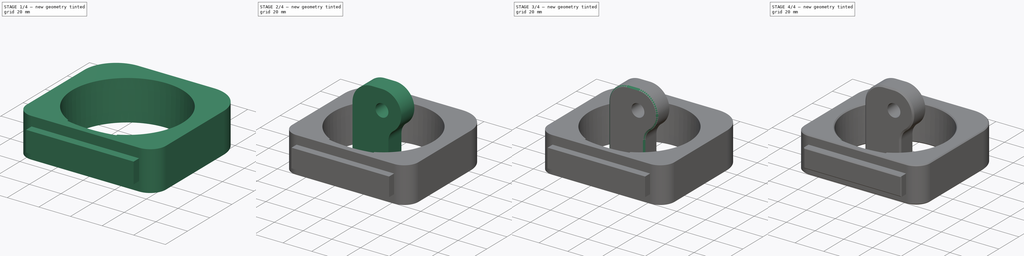
[diagram: build sequence overview — one tinted view per stage of 4, left to right]
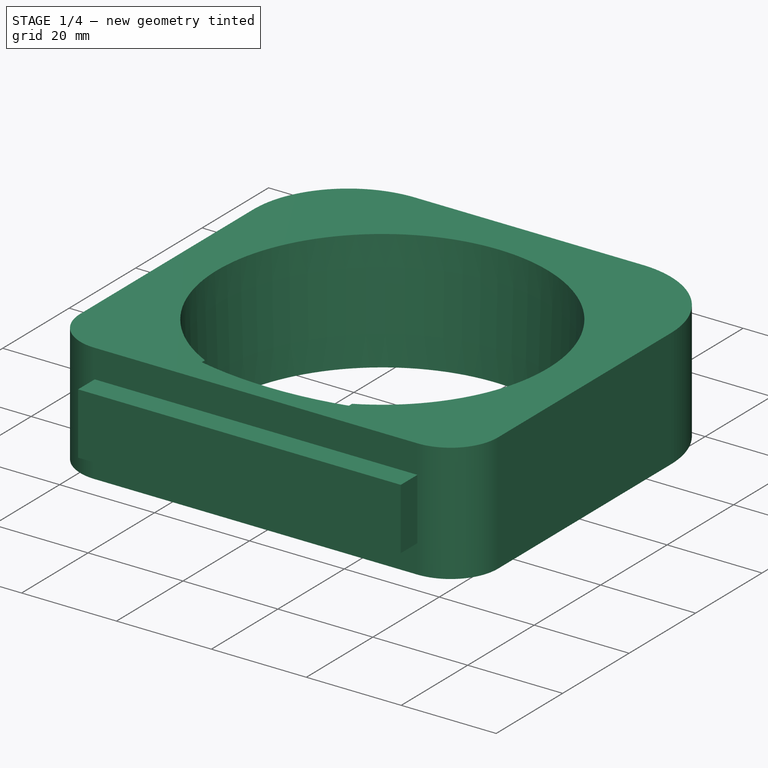
[diagram: stage 1 of 4 — iso view after this stage's code; geometry added in this stage tinted green]
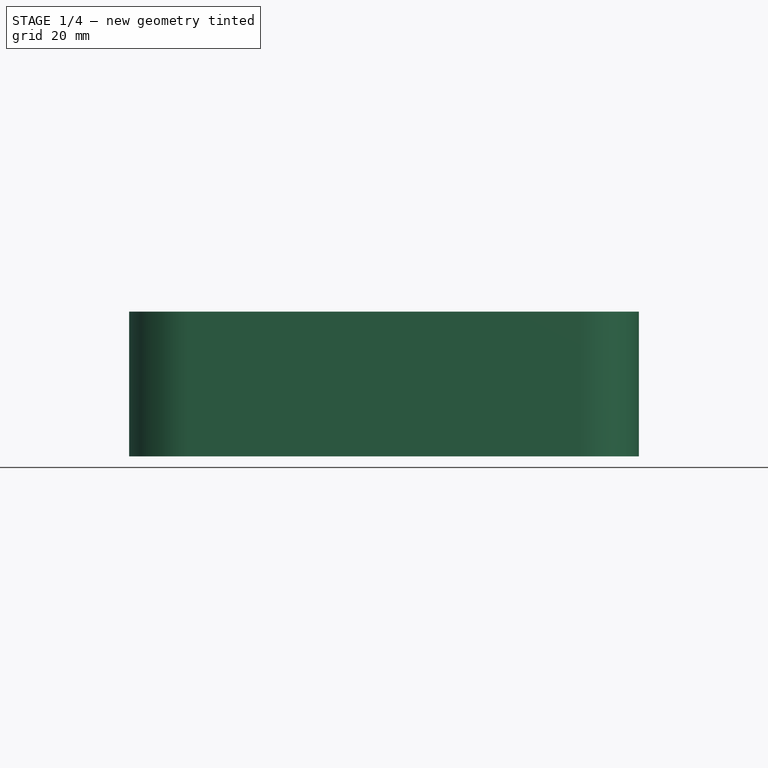
[diagram: stage 1 of 4 — front view after this stage's code; geometry added in this stage tinted green]
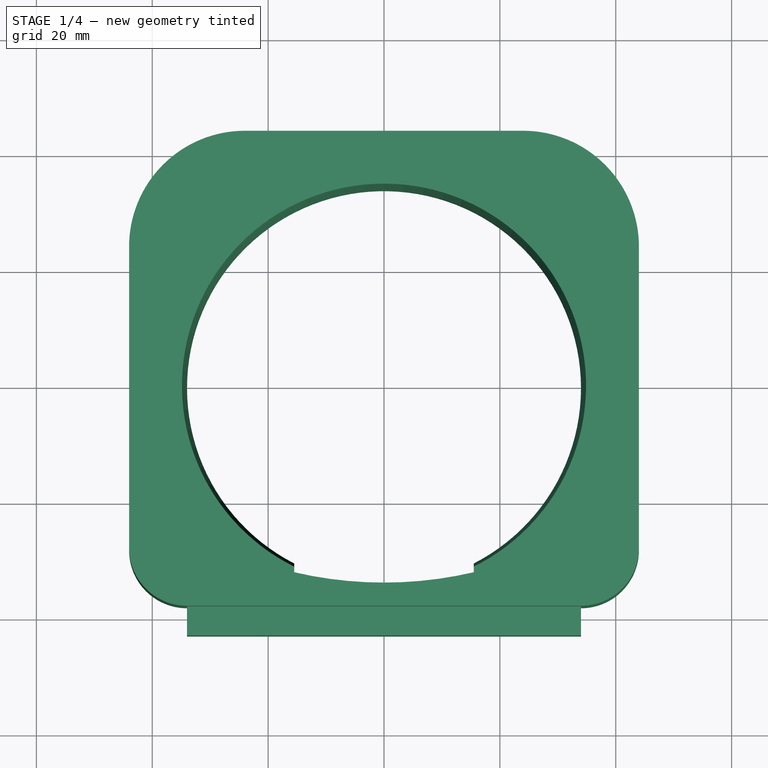
[diagram: stage 1 of 4 — top view after this stage's code; geometry added in this stage tinted green]
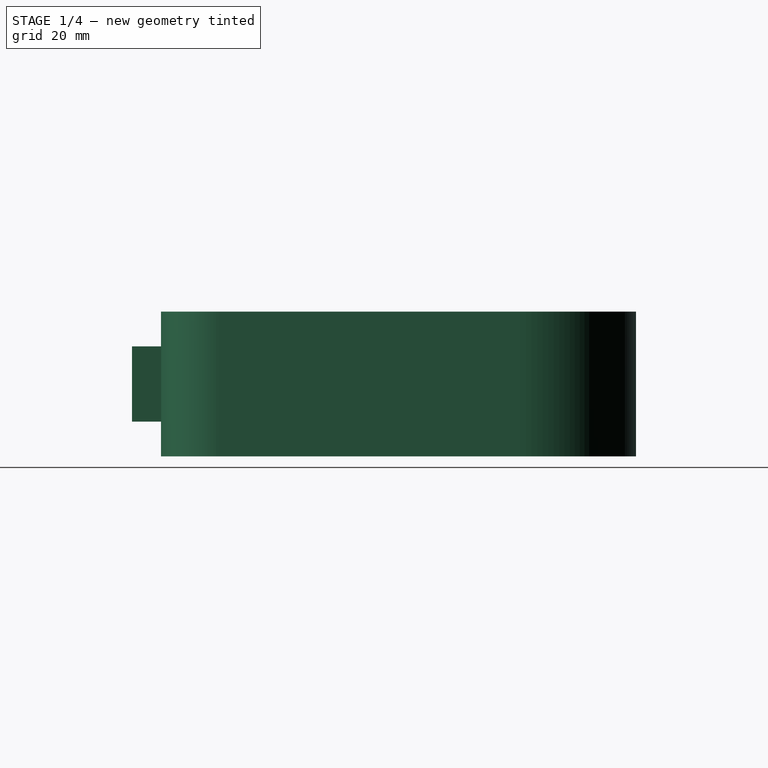
[diagram: stage 1 of 4 — right view after this stage's code; geometry added in this stage tinted green]
FCSTD DOCUMENT  (FreeCAD 2021.328R24301 +3441 (Git))
Label: angle grinder holder
License: All rights reserved
LicenseURL: http://en.wikipedia.org/wiki/All_rights_reserved
objects: Sketcher::SketchObject×5, PartDesign::Pad×4, PartDesign::Chamfer×3, PartDesign::Body×2, PartDesign::Solid×2, PartDesign::Draft×1, PartDesign::Plane×1, Part::SubShapeBinder×1, PartDesign::Pocket×1, PartDesign::Split×1
note: 40 computed .brp shape members not serialized (recipe doc carries the construction recipe); baked Part::Feature solids carry a one-line shape summary decoded from their .brp

FEATURE [Sketcher::SketchObject] Sketch
  FullyConstrained = true
  MapMode = 5
  Support = -> [XY_Plane]
  sketch-geometry (15):
    g0: Circle [constr] CenterX=0 CenterY=0 CenterZ=0 NormalX=0 NormalY=0 NormalZ=1 AngleXU=0 Radius=34
    g1: ArcOfCircle CenterX=-5.8e-15 CenterY=34 CenterZ=0 NormalX=0 NormalY=0 NormalZ=1 AngleXU=0 Radius=68 StartAngle=4.48243 EndAngle=4.94235
    g2: LineSegment StartX=-15.5 StartY=-32.2099 StartZ=0 EndX=-15.5 EndY=-30.2614 EndZ=0
    g3: LineSegment StartX=15.5 StartY=-32.2099 StartZ=0 EndX=15.5 EndY=-30.2614 EndZ=0
    g4: ArcOfCircle CenterX=0 CenterY=0 CenterZ=0 NormalX=0 NormalY=0 NormalZ=1 AngleXU=0 Radius=34 StartAngle=5.18575 EndAngle=10.5222
    g5: LineSegment StartX=-34 StartY=-38 StartZ=0 EndX=34 EndY=-38 EndZ=0
    g6: LineSegment StartX=44 StartY=-28 StartZ=0 EndX=44 EndY=24 EndZ=0
    g7: LineSegment StartX=24 StartY=44 StartZ=0 EndX=-24 EndY=44 EndZ=0
    g8: LineSegment StartX=-44 StartY=24 StartZ=0 EndX=-44 EndY=-28 EndZ=0
    g9: GeomPoint [constr] X=34 Y=0 Z=0
    g10: GeomPoint [constr] X=0 Y=-34 Z=0
    g11: ArcOfCircle CenterX=-34 CenterY=-28 CenterZ=0 NormalX=0 NormalY=0 NormalZ=1 AngleXU=0 Radius=10 StartAngle=3.14159 EndAngle=4.71239
    g12: ArcOfCircle CenterX=-24 CenterY=24 CenterZ=0 NormalX=0 NormalY=0 NormalZ=1 AngleXU=0 Radius=20 StartAngle=1.5708 EndAngle=3.14159
    g13: ArcOfCircle CenterX=24 CenterY=24 CenterZ=0 NormalX=0 NormalY=0 NormalZ=1 AngleXU=0 Radius=20 StartAngle=0 EndAngle=1.5708
    g14: ArcOfCircle CenterX=34 CenterY=-28 CenterZ=0 NormalX=0 NormalY=0 NormalZ=1 AngleXU=0 Radius=10 StartAngle=4.71239 EndAngle=6.28319
  constraints (37):
    c: Coincident(g0,g-1)
    c: Diameter(g0) = 68
    c: Symmetric(g1,g1,g-2)
    c: DistanceX(g1,g1) = 31
    c: Tangent(g1,g0)
    c: PointOnObject(g1,g0)
    c: Coincident(g2,g1)
    c: PointOnObject(g2,g0)
    c: Vertical(g2)
    c: Coincident(g3,g1)
    c: Coincident(g4,g-1)
    c: Coincident(g4,g2)
    c: Coincident(g4,g3)
    c: Vertical(g3)
    c: Horizontal(g5)
    c: Vertical(g6)
    c: Vertical(g8)
    c: PointOnObject(g9,g4)
    c: PointOnObject(g9,g-1)
    c: PointOnObject(g10,g0)
    c: PointOnObject(g10,g-2)
    c: Tangent(g5,g11) = -1.5708
    c: Tangent(g8,g11) = -1.5708
    c: Tangent(g8,g12) = -1.5708
    c: Tangent(g7,g12) = -1.5708
    c: Tangent(g7,g13) = -1.5708
    c: Tangent(g6,g13) = -1.5708
    c: Tangent(g6,g14) = -1.5708
    c: Tangent(g5,g14) = -1.5708
    c: Equal(g12,g13)
    c: DistanceY(g1,g7) = 10
    c: DistanceX(g9,g6) = 10
    c: Symmetric(g6,g8,g-2)
    c: DistanceY(g5,g10) = 4
    c: Diameter(g13) = 40
    c: Diameter(g14) = 20
    c: Equal(g14,g11)
FEATURE [PartDesign::Pad] Pad
  ClaimChildren = false
  Direction = (1,1,1)
  Fit = 0
  FitJoin = 0
  InnerFit = 0
  InnerFitJoin = 0
  InnerTaperAngle = 0
  InnerTaperAngleRev = 0
  Length = 25
  Length2 = 100
  NewSolid = false
  Profile = -> Sketch
  Suppress = false
  Type = 0
FEATURE [Sketcher::SketchObject] Sketch001
  ExternalGeometry = -> [Pad]
  FullyConstrained = true
  MapMode = 5
  Placement = pos=(0,-38,0) rot=(1,0,0;1.5708rad)
  Support = -> [Pad]
  sketch-geometry (5):
    g0: LineSegment StartX=-34 StartY=19 StartZ=0 EndX=34 EndY=19 EndZ=0
    g1: LineSegment StartX=34 StartY=19 StartZ=0 EndX=34 EndY=6 EndZ=0
    g2: LineSegment StartX=34 StartY=6 StartZ=0 EndX=-34 EndY=6 EndZ=0
    g3: LineSegment StartX=-34 StartY=6 StartZ=0 EndX=-34 EndY=19 EndZ=0
    g4: GeomPoint [constr] X=34 Y=12.5 Z=0
  constraints (12):
    c: Coincident(g0,g1)
    c: Coincident(g1,g2)
    c: Coincident(g2,g3)
    c: Coincident(g3,g0)
    c: Horizontal(g0)
    c: Horizontal(g2)
    c: Vertical(g1)
    c: Vertical(g3)
    c: PointOnObject(g0,g-3)
    c: Symmetric(g1,g0,g4)
    c: Symmetric(g-4,g-4,g4)
    c: DistanceY(g3,g3) = 13
FEATURE [PartDesign::Pad] Pad001
  BaseFeature = -> Pad
  ClaimChildren = false
  Direction = (1,1,1)
  Fit = 0
  FitJoin = 0
  InnerFit = 0
  InnerFitJoin = 0
  InnerTaperAngle = 0
  InnerTaperAngleRev = 0
  Length = 5
  Length2 = 100
  NewSolid = false
  Profile = -> Sketch001
  Suppress = false
  Type = 0
FEATURE [PartDesign::Draft] Draft
  Angle = 2
  Base = -> Pad001 [Face13]
  BaseFeature = -> Pad001
  NewSolid = false
  Refine = true
  Reversed = true
  SupportTransform = false
  Suppress = false
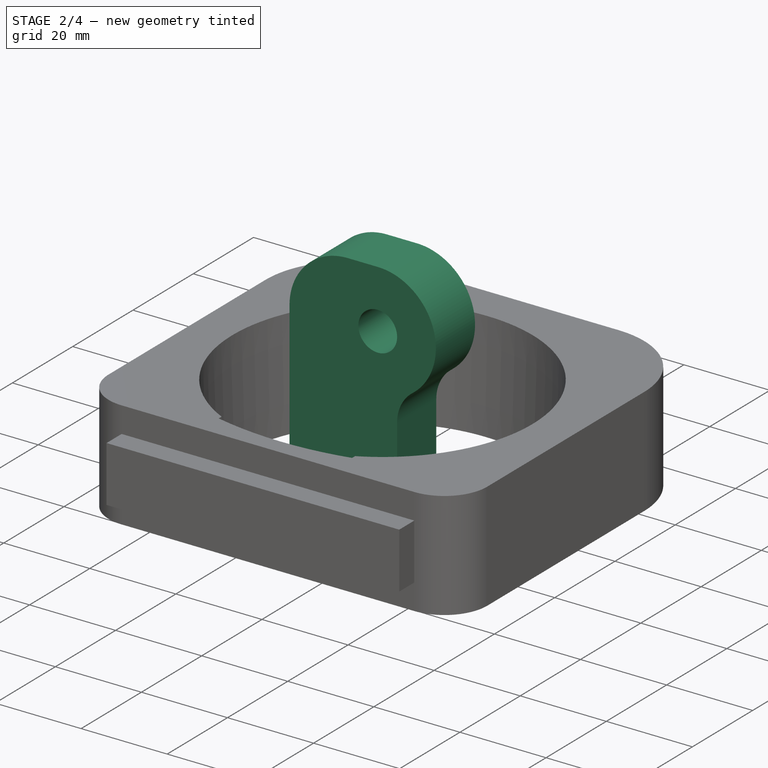
[diagram: stage 2 of 4 — iso view after this stage's code; geometry added in this stage tinted green]
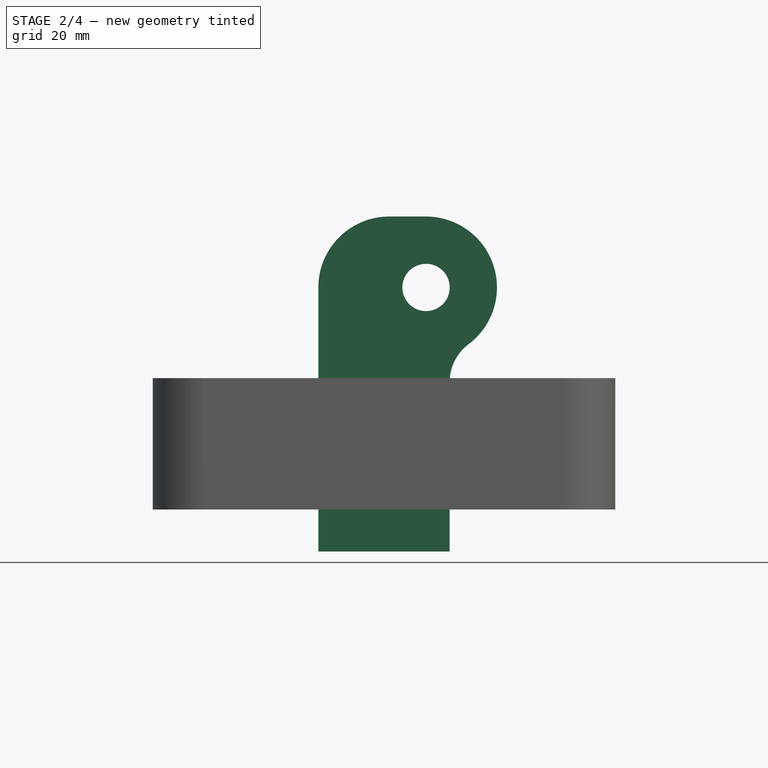
[diagram: stage 2 of 4 — front view after this stage's code; geometry added in this stage tinted green]
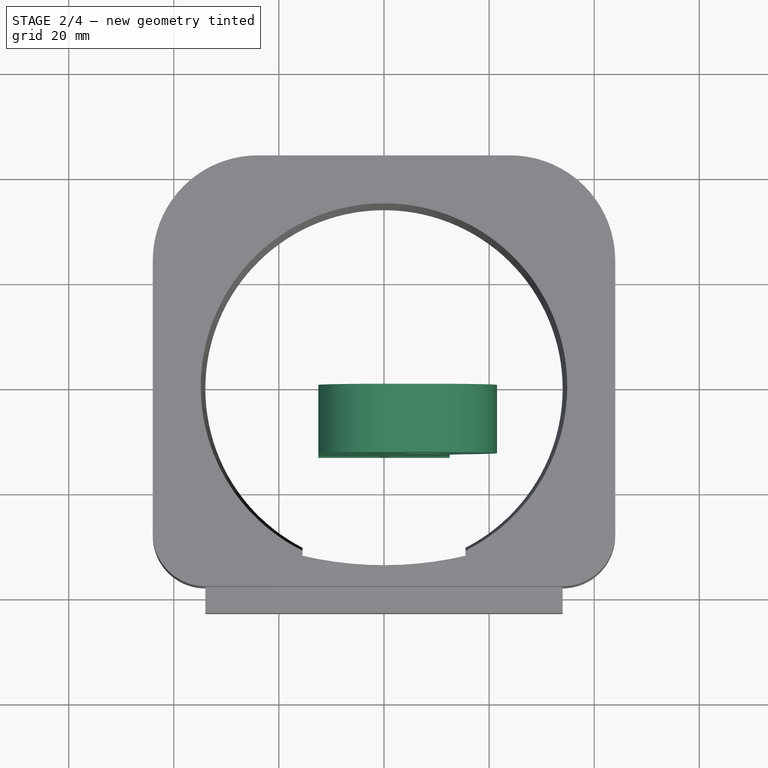
[diagram: stage 2 of 4 — top view after this stage's code; geometry added in this stage tinted green]
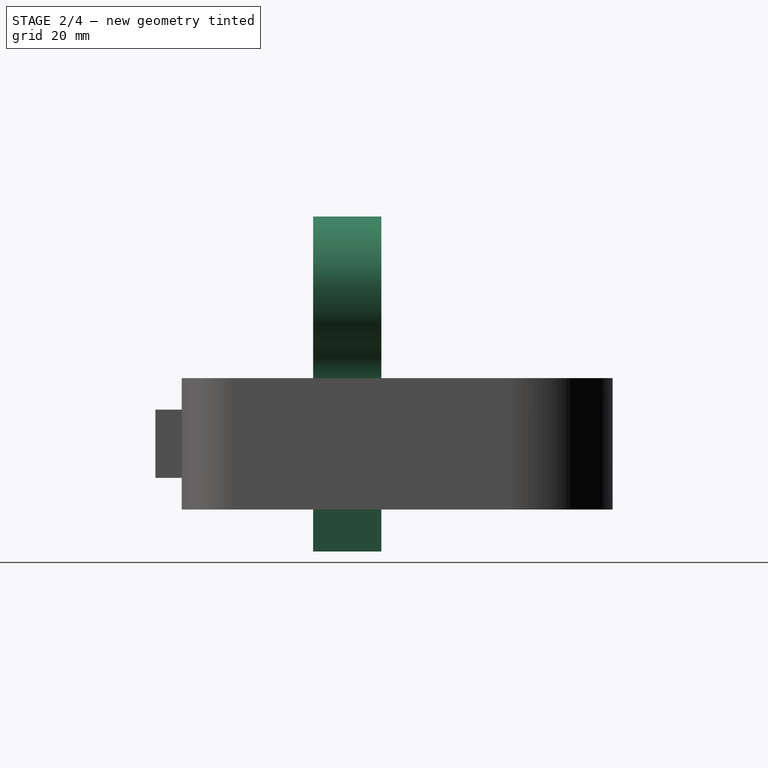
[diagram: stage 2 of 4 — right view after this stage's code; geometry added in this stage tinted green]
FEATURE [PartDesign::Plane] DatumPlane
  Length = 10
  MapMode = 5
  MinimumLength = 10
  MinimumWidth = 10
  Placement = pos=(0,0,0) rot=(1,0,0;1.5708rad)
  ResizeMode = 0
  Support = -> [XZ_Plane]
  Width = 10
FEATURE [Sketcher::SketchObject] Sketch002
  FullyConstrained = true
  MapMode = 5
  Placement = pos=(0,0,0) rot=(1,0,0;1.5708rad)
  Support = -> [XZ_Plane001]
  expr: .Constraints[28] = 9 * 1.5
  expr: .Constraints[29] = 9 * 1.5
  expr: .Constraints[32] = 9 * 1.5
  sketch-geometry (19):
    g0: LineSegment StartX=-12.5 StartY=0 StartZ=0 EndX=12.5 EndY=0 EndZ=0
    g1: LineSegment StartX=12.5 StartY=0 StartZ=0 EndX=12.5 EndY=-8 EndZ=0
    g2: LineSegment StartX=12.5 StartY=-8 StartZ=0 EndX=-12.5 EndY=-8 EndZ=0
    g3: LineSegment StartX=-12.5 StartY=-8 StartZ=0 EndX=-12.5 EndY=0 EndZ=0
    g4: LineSegment [constr] StartX=-12.5 StartY=8.25 StartZ=0 EndX=-12.5 EndY=55.75 EndZ=0
    g5: LineSegment [constr] StartX=-12.5 StartY=55.75 StartZ=0 EndX=21.5 EndY=55.75 EndZ=0
    g6: LineSegment [constr] StartX=21.5 StartY=55.75 StartZ=0 EndX=21.5 EndY=28.75 EndZ=0
    g7: LineSegment [constr] StartX=21.5 StartY=28.75 StartZ=0 EndX=12.5 EndY=28.75 EndZ=0
    g8: LineSegment [constr] StartX=12.5 StartY=28.75 StartZ=0 EndX=12.5 EndY=8.25 EndZ=0
    g9: LineSegment StartX=12.5 StartY=8.25 StartZ=0 EndX=-12.5 EndY=8.25 EndZ=0
    g10: Circle CenterX=8 CenterY=42.25 CenterZ=0 NormalX=0 NormalY=0 NormalZ=1 AngleXU=0 Radius=4.5
    g11: GeomPoint [constr] X=21.5 Y=42.25 Z=0
    g12: ArcOfCircle CenterX=8 CenterY=42.25 CenterZ=0 NormalX=0 NormalY=0 NormalZ=1 AngleXU=0 Radius=13.5 StartAngle=0 EndAngle=1.5708
    g13: ArcOfCircle CenterX=8 CenterY=42.25 CenterZ=0 NormalX=0 NormalY=0 NormalZ=1 AngleXU=0 Radius=13.5 StartAngle=5.35589 EndAngle=6.28319
    g14: LineSegment StartX=12.5 StartY=24.25 StartZ=0 EndX=12.5 EndY=8.25 EndZ=0
    g15: ArcOfCircle CenterX=1 CenterY=42.25 CenterZ=0 NormalX=0 NormalY=0 NormalZ=1 AngleXU=0 Radius=13.5 StartAngle=1.5708 EndAngle=3.14159
    g16: LineSegment StartX=1 StartY=55.75 StartZ=0 EndX=8 EndY=55.75 EndZ=0
    g17: LineSegment StartX=-12.5 StartY=42.25 StartZ=0 EndX=-12.5 EndY=8.25 EndZ=0
    g18: ArcOfCircle CenterX=21.5 CenterY=24.25 CenterZ=0 NormalX=0 NormalY=0 NormalZ=1 AngleXU=0 Radius=9 StartAngle=2.2143 EndAngle=3.14159
  constraints (54):
    c: Coincident(g0,g1)
    c: Coincident(g1,g2)
    c: Coincident(g2,g3)
    c: Coincident(g3,g0)
    c: Horizontal(g2)
    c: Vertical(g1)
    c: Vertical(g3)
    c: PointOnObject(g0,g-1)
    c: DistanceY(g1,g1) = 8
    c: DistanceX(g2,g2) = 25
    c: Symmetric(g0,g0,g-2)
    c: Vertical(g4)
    c: Coincident(g4,g5)
    c: Horizontal(g5)
    c: Coincident(g5,g6)
    c: Vertical(g6)
    c: Coincident(g6,g7)
    c: Horizontal(g7)
    c: Coincident(g7,g8)
    c: Vertical(g8)
    c: Coincident(g8,g9)
    c: Coincident(g9,g4)
    c: Horizontal(g9)
    c: DistanceX(g-1,g10) = 8
    c: Diameter(g10) = 9
    c: DistanceY(g8,g10) = 34
    c: DistanceY(g0,g8) = 8.25
    c: Vertical(g0,g4)
    c: DistanceY(g10,g4) = 13.5
    c: DistanceY(g7,g10) = 13.5
    c: PointOnObject(g11,g6)
    c: Horizontal(g11,g10)
    c: DistanceX(g10,g11) = 13.5
    c: Coincident(g12,g10)
    c: PointOnObject(g12,g5)
    c: Coincident(g12,g11)
    c: Coincident(g13,g10)
    c: PointOnObject(g14,g8)
    c: Coincident(g13,g12)
    c: Coincident(g14,g9)
    c: PointOnObject(g15,g5)
    c: PointOnObject(g15,g4)
    c: Vertical(g15,g15)
    c: Horizontal(g15,g15)
    c: Equal(g15,g12)
    c: Coincident(g16,g15)
    c: Coincident(g16,g12)
    c: Coincident(g17,g15)
    c: Coincident(g17,g9)
    c: Vertical(g9,g0)
    c: Coincident(g18,g14)
    c: Horizontal(g14,g18)
    c: Tangent(g18,g13) = 1.5708
    c: Vertical(g18,g6)
FEATURE [PartDesign::Pad] Pad002
  ClaimChildren = false
  Direction = (1,1,1)
  Fit = 0
  FitJoin = 0
  InnerFit = 0
  InnerFitJoin = 0
  InnerTaperAngle = 0
  InnerTaperAngleRev = 0
  Length = 13
  Length2 = 100
  NewSolid = false
  Placement = pos=(0,0,0) rot=(1,0,0;1.5708rad)
  Profile = -> Sketch002
  Suppress = false
  Type = 0
FEATURE [Sketcher::SketchObject] Sketch003
  ExternalGeometry = -> [Pad002]
  FullyConstrained = true
  MapMode = 5
  Placement = pos=(0,0,0) rot=(0,0,1;3.14159rad)
  Support = -> [Pad002]
  sketch-geometry (1):
    g0: Circle CenterX=0 CenterY=6.5 CenterZ=0 NormalX=0 NormalY=0 NormalZ=1 AngleXU=0 Radius=6.5
  constraints (3):
    c: PointOnObject(g0,g-2)
    c: Tangent(g0,g-3)
    c: PointOnObject(g-1,g0)
FEATURE [PartDesign::Pad] Pad003
  BaseFeature = -> Pad002
  ClaimChildren = false
  Direction = (1,1,1)
  Fit = 0
  FitJoin = 0
  InnerFit = 0
  InnerFitJoin = 0
  InnerTaperAngle = 0
  InnerTaperAngleRev = 0
  Length = 10
  Length2 = 100
  NewSolid = false
  Placement = pos=(0,0,0) rot=(1,0,0;1.5708rad)
  Profile = -> Sketch003
  Suppress = false
  Type = 2
FEATURE [Part::SubShapeBinder] Import  label="Import(Draft)"
  BindCopyOnChange = 0
  BindMode = 0
  ClaimChildren = false
  Context = -> Body001 [Import.]
  FillStyle = 0
  Fuse = false
  MakeFace = false
  PartialLoad = false
  Relative = true
  Support = -> [Body[Draft.]]
  _Version = 7
FEATURE [PartDesign::Body] Body001  label="front clamp"
  AutoGroupSolids = false
  ExportMode = 0
  Group = -> [Sketch002,Pad002,Sketch003,Pad003,Chamfer002,Import]
  Origin = -> Origin001
  Tip = -> Chamfer002
  _ExportChildren = -> [Pad002,Pad003,Chamfer002,Import]
  _GroupVersion = 1
FEATURE [Sketcher::SketchObject] Sketch004
  AttachmentOffset = pos=(0,0,44) rot=(0,0,1;0rad)
  ExternalGeometry = -> [Draft]
  FullyConstrained = false
  MapMode = 5
  Placement = pos=(0,0,9.8e-15) rot=(1,0,0;1.5708rad)
  Support = -> [Draft]
  sketch-geometry (2):
    g0: Circle CenterX=-39.0877 CenterY=12.5 CenterZ=0 NormalX=0 NormalY=0 NormalZ=1 AngleXU=0 Radius=2.55
    g1: Circle CenterX=38.8363 CenterY=12.5 CenterZ=0 NormalX=0 NormalY=0 NormalZ=1 AngleXU=0 Radius=2.55
  constraints (5):
    c: Diameter(g0) = 5.1
    c: DistanceY(g-3) = 25
    c: DistanceY(g0) = 12.5
    c: Equal(g0,g1)
    c: Horizontal(g0,g1)
FEATURE [PartDesign::Pocket] Pocket
  BaseFeature = -> Draft
  ClaimChildren = false
  Fit = 0
  FitJoin = 0
  InnerFit = 0
  InnerFitJoin = 0
  InnerTaperAngle = 0
  InnerTaperAngleRev = 0
  Length = 27
  Length2 = 100
  Midplane = true
  NewSolid = false
  Profile = -> Sketch004
  Suppress = false
  Type = 0
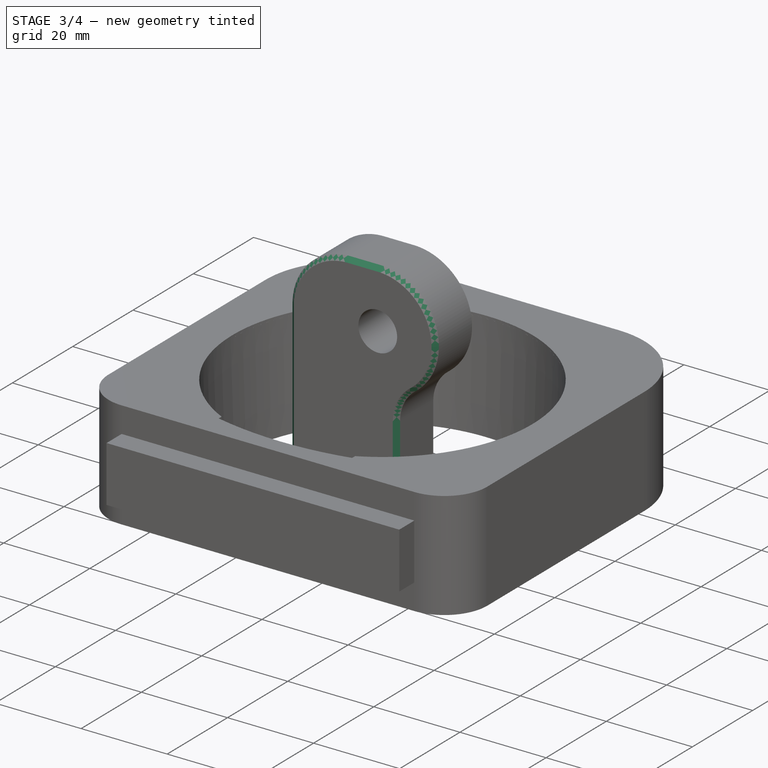
[diagram: stage 3 of 4 — iso view after this stage's code; geometry added in this stage tinted green]
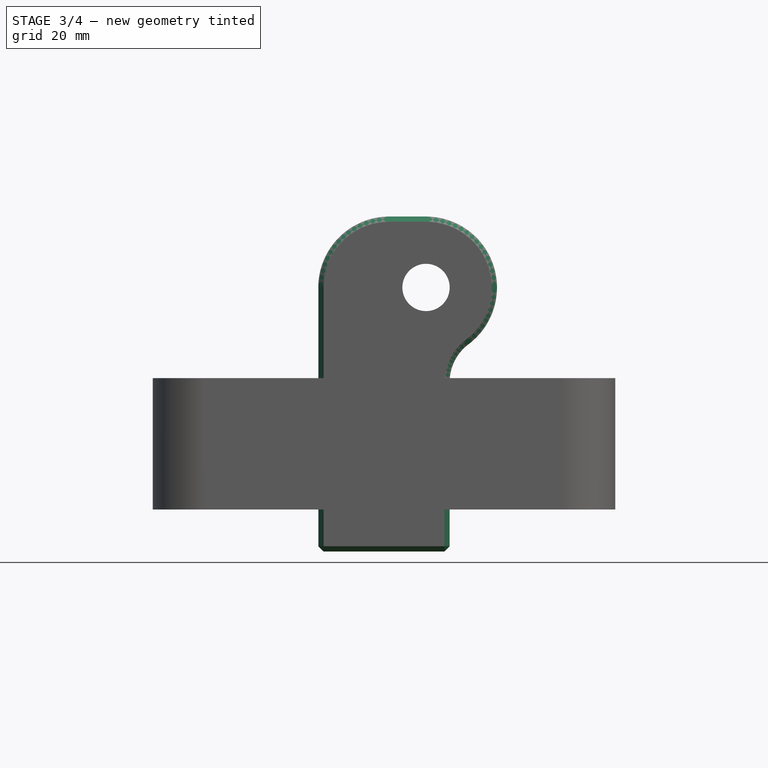
[diagram: stage 3 of 4 — front view after this stage's code; geometry added in this stage tinted green]
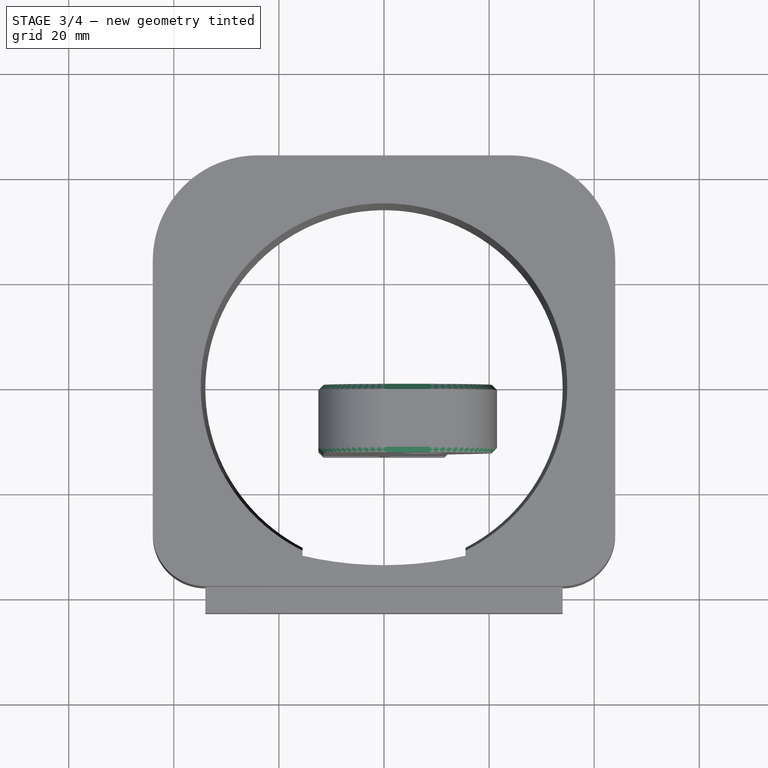
[diagram: stage 3 of 4 — top view after this stage's code; geometry added in this stage tinted green]
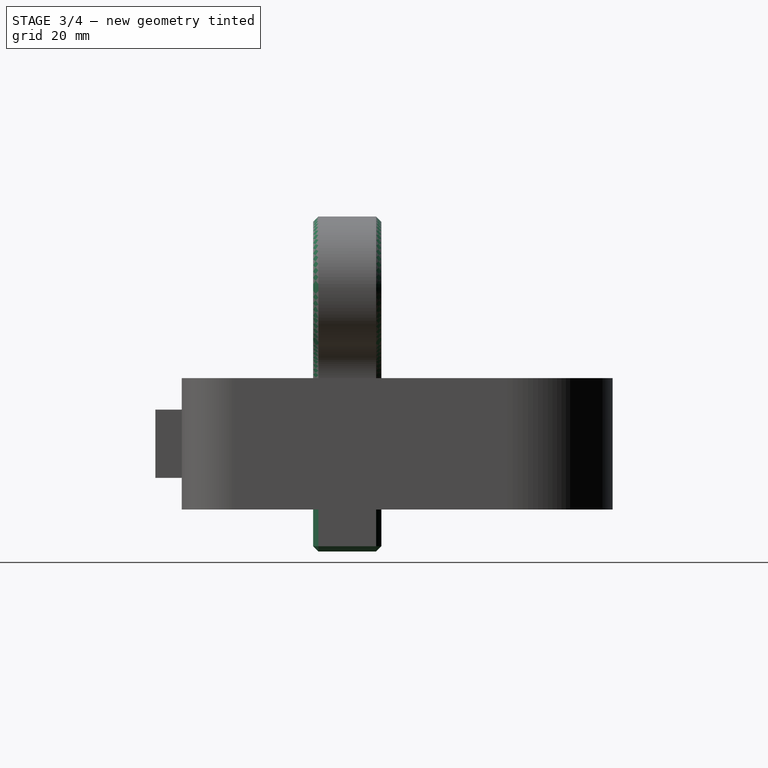
[diagram: stage 3 of 4 — right view after this stage's code; geometry added in this stage tinted green]
FEATURE [PartDesign::Chamfer] Chamfer002
  Angle = 45
  Base = -> Pad003 [Edge20,Edge13,Edge48,Edge45,Edge46,Edge43,Face20]
  BaseFeature = -> Pad003
  ChamferType = 0
  FlipDirection = false
  NewSolid = false
  Placement = pos=(0,0,0) rot=(1,0,0;1.5708rad)
  Size = 1
  Size2 = 1
  SupportTransform = false
  Suppress = false
FEATURE [PartDesign::Solid] Split_i1
  Active = true
  Parent = -> Split
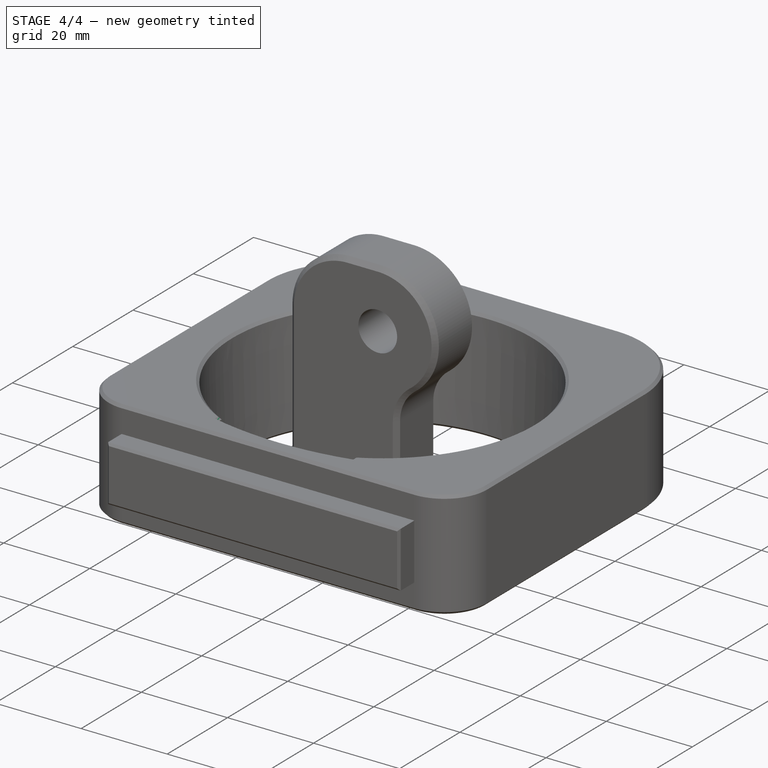
[diagram: stage 4 of 4 — iso view after this stage's code; geometry added in this stage tinted green]
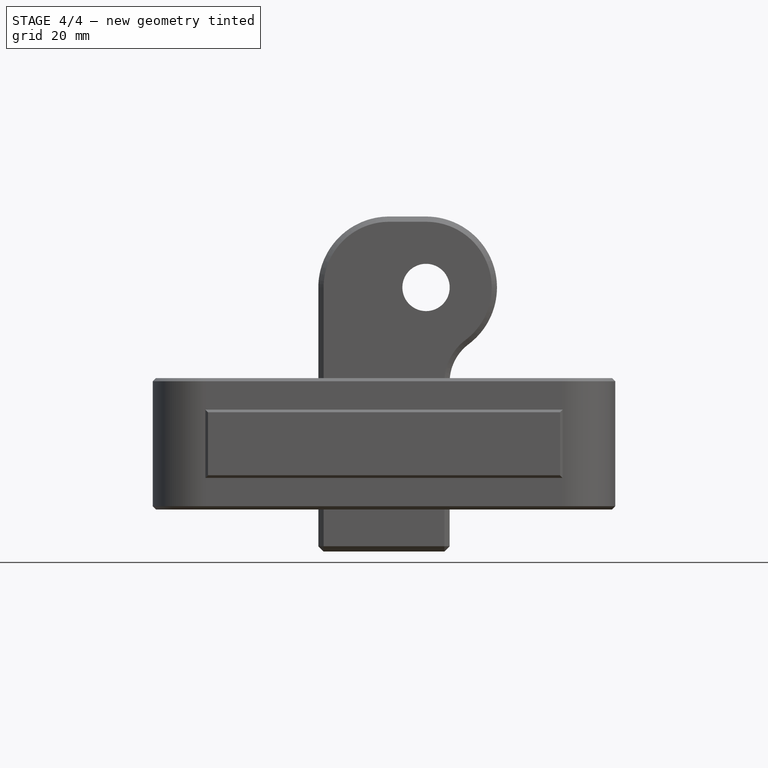
[diagram: stage 4 of 4 — front view after this stage's code; geometry added in this stage tinted green]
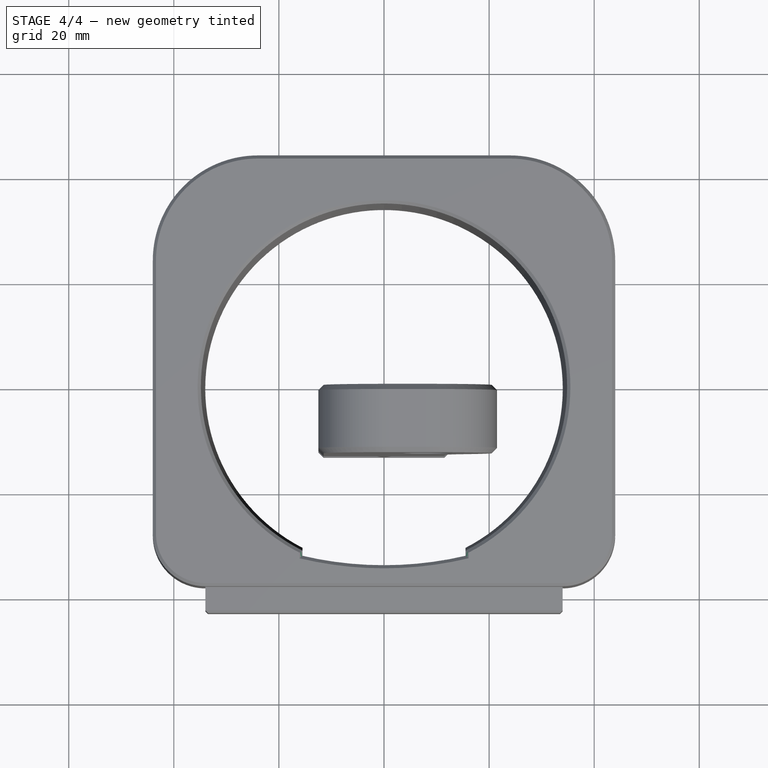
[diagram: stage 4 of 4 — top view after this stage's code; geometry added in this stage tinted green]
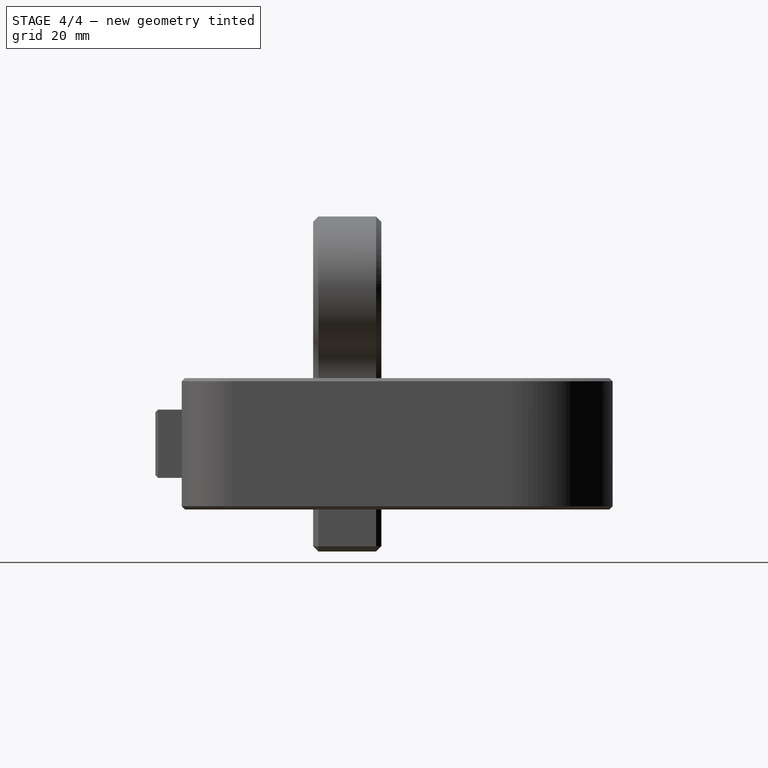
[diagram: stage 4 of 4 — right view after this stage's code; geometry added in this stage tinted green]
FEATURE [PartDesign::Chamfer] Chamfer
  Angle = 45
  Base = -> Pocket [Face19]
  BaseFeature = -> Pocket
  ChamferType = 0
  FlipDirection = false
  NewSolid = false
  Size = 0.5
  Size2 = 1
  SupportTransform = false
  Suppress = false
FEATURE [PartDesign::Chamfer] Chamfer001
  Angle = 45
  Base = -> Chamfer [Face11,Face16]
  BaseFeature = -> Chamfer
  ChamferType = 0
  FlipDirection = false
  NewSolid = false
  Refine = true
  Size = 0.6
  Size2 = 1
  SupportTransform = false
  Suppress = false
FEATURE [PartDesign::Body] Body  label="rear clamp"
  AutoGroupSolids = false
  ExportMode = 0
  Group = -> [Sketch,Pad,Sketch001,Pad001,Draft,Sketch004,Pocket,Chamfer,Chamfer001,DatumPlane,Split,Split_i0,Split_i1]
  Origin = -> Origin
  Tip = -> Split
  _ExportChildren = -> [Pad,Pad001,Draft,Pocket,Chamfer,Chamfer001,Split]
  _GroupVersion = 1
FEATURE [PartDesign::Split] Split
  BaseFeature = -> Chamfer001
  Fragment = false
  Mode = 0
  NewSolid = false
  Solids = -> [Split_i0,Split_i1]
  Suppress = false
  Tolerance = 0
  Tools = -> [DatumPlane]
FEATURE [PartDesign::Solid] Split_i0
  Active = true
  Parent = -> Split
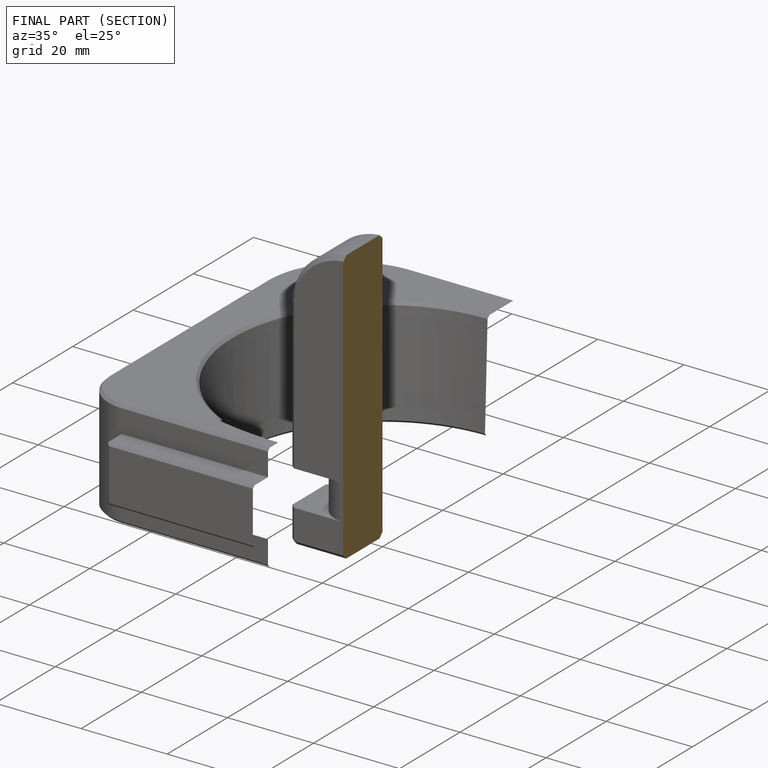
[diagram: finished part — half-section view (interior)]
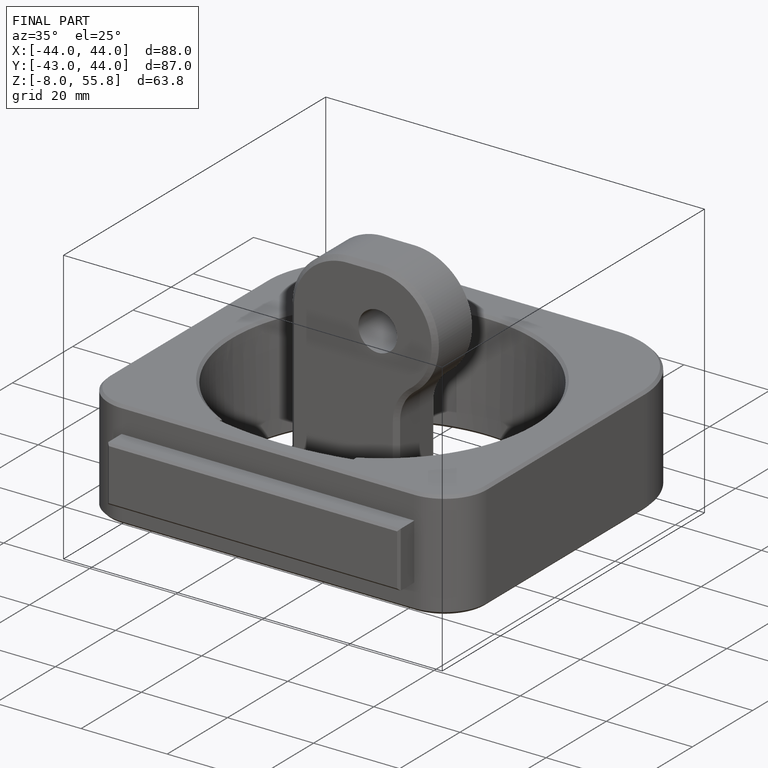
[diagram: finished part — iso view with bounding-box wireframe]
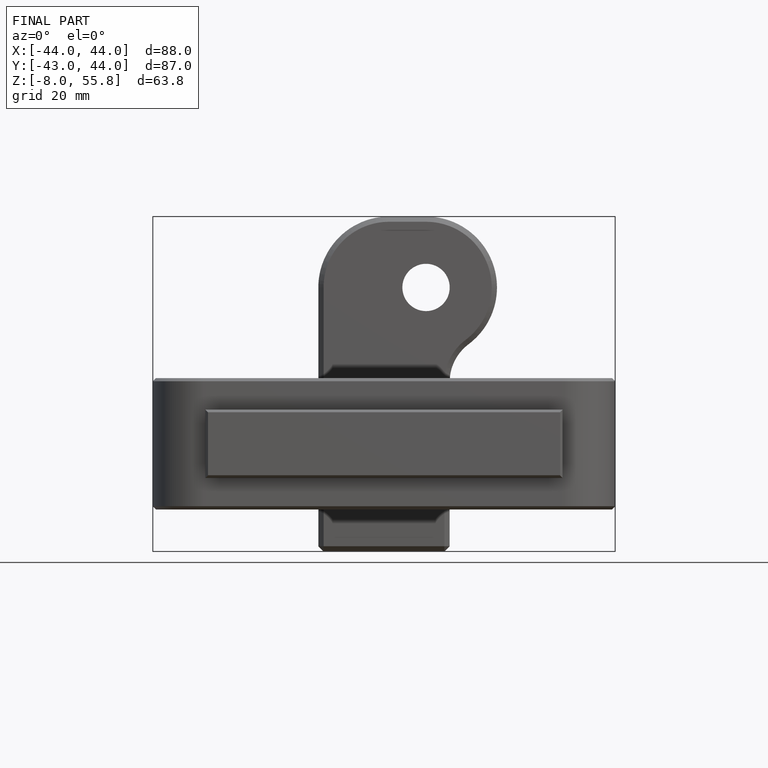
[diagram: finished part — front view with bounding-box wireframe]
